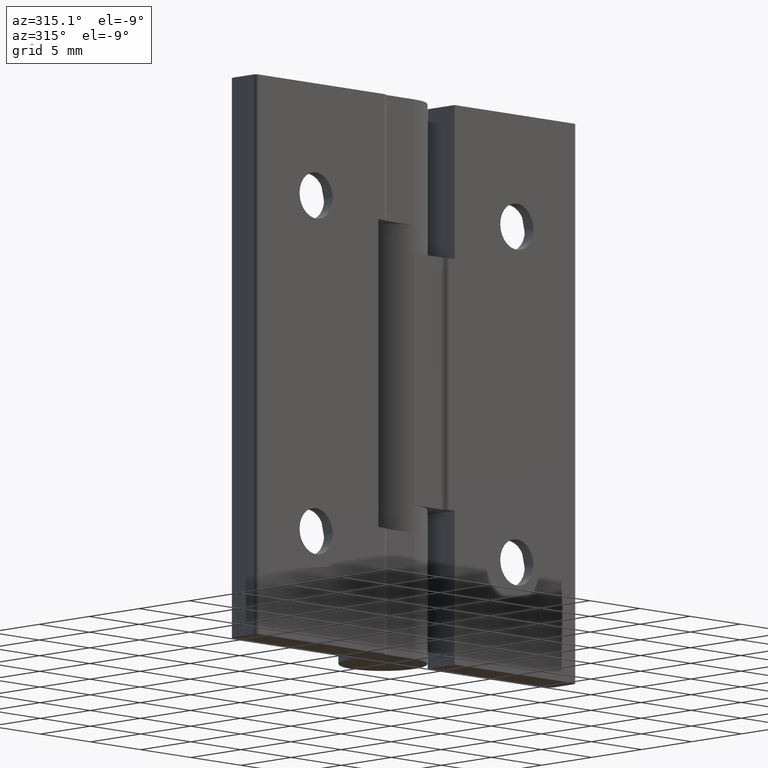
[diagram: clean part render]
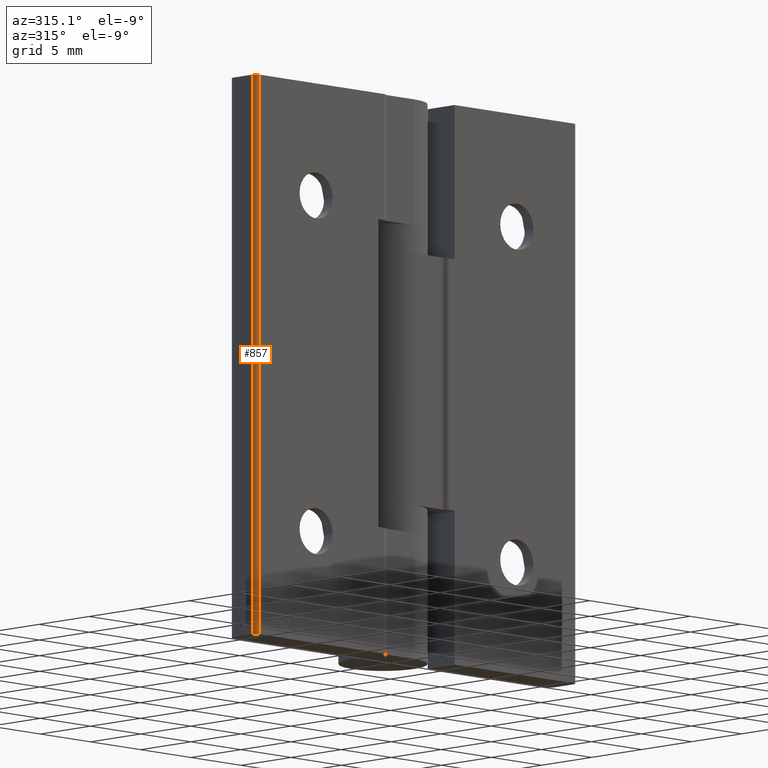
[diagram: same view with one face highlighted and labeled with its STEP entity id]
A machine part, auxiliary view. The second image highlights one B-rep face of the part: STEP entity #857.
In plain terms, the highlighted cylindrical surface (edge-blend (fillet) strip) has radius 0.3 mm, axis along (0, 0, -1).
Its self-contained STEP definition (entity closure, byte-faithful):
#56=CYLINDRICAL_SURFACE('',#928,0.3);
#119=CIRCLE('',#929,0.3);
#120=CIRCLE('',#930,0.3);
#164=FACE_OUTER_BOUND('',#220,.T.);
#220=EDGE_LOOP('',(#653,#654,#655,#656));
#307=LINE('',#1376,#368);
#308=LINE('',#1379,#369);
#368=VECTOR('',#1090,40.);
#369=VECTOR('',#1093,40.);
#436=VERTEX_POINT('',#1372);
#437=VERTEX_POINT('',#1373);
#438=VERTEX_POINT('',#1375);
#439=VERTEX_POINT('',#1377);
#526=EDGE_CURVE('',#436,#437,#119,.T.);
#527=EDGE_CURVE('',#437,#438,#307,.T.);
#528=EDGE_CURVE('',#438,#439,#120,.T.);
#529=EDGE_CURVE('',#439,#436,#308,.T.);
#653=ORIENTED_EDGE('',*,*,#526,.T.);
#654=ORIENTED_EDGE('',*,*,#527,.T.);
#655=ORIENTED_EDGE('',*,*,#528,.T.);
#656=ORIENTED_EDGE('',*,*,#529,.T.);
#857=ADVANCED_FACE('',(#164),#56,.T.);
#928=AXIS2_PLACEMENT_3D('',#1371,#1086,#1087);
#929=AXIS2_PLACEMENT_3D('',#1374,#1088,#1089);
#930=AXIS2_PLACEMENT_3D('',#1378,#1091,#1092);
#1086=DIRECTION('center_axis',(0.,0.,-1.));
#1087=DIRECTION('ref_axis',(-0.707106781186545,-0.70710678118655,0.));
#1088=DIRECTION('center_axis',(0.,0.,1.));
#1089=DIRECTION('ref_axis',(-0.707106781186545,-0.70710678118655,0.));
#1090=DIRECTION('',(0.,0.,1.));
#1091=DIRECTION('center_axis',(0.,0.,-1.));
#1092=DIRECTION('ref_axis',(-0.707106781186545,-0.70710678118655,0.));
#1093=DIRECTION('',(0.,0.,-1.));
#1371=CARTESIAN_POINT('Origin',(-15.7,0.3,0.));
#1372=CARTESIAN_POINT('',(-16.,0.3,-40.));
#1373=CARTESIAN_POINT('',(-15.7,2.08166817117216E-17,-40.));
#1374=CARTESIAN_POINT('Origin',(-15.7,0.3,-40.));
#1375=CARTESIAN_POINT('',(-15.7,2.08166817117216E-17,0.));
#1376=CARTESIAN_POINT('',(-15.7,3.46944695195361E-17,0.));
#1377=CARTESIAN_POINT('',(-16.,0.3,0.));
#1378=CARTESIAN_POINT('Origin',(-15.7,0.3,0.));
#1379=CARTESIAN_POINT('',(-16.,0.3,0.));